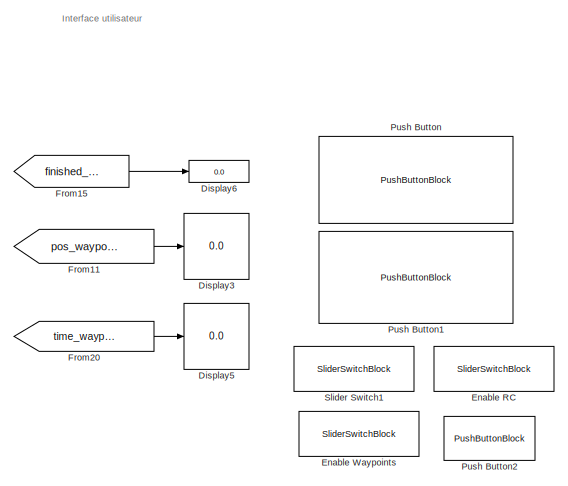
[diagram: root canvas - part 1/5, top center region]
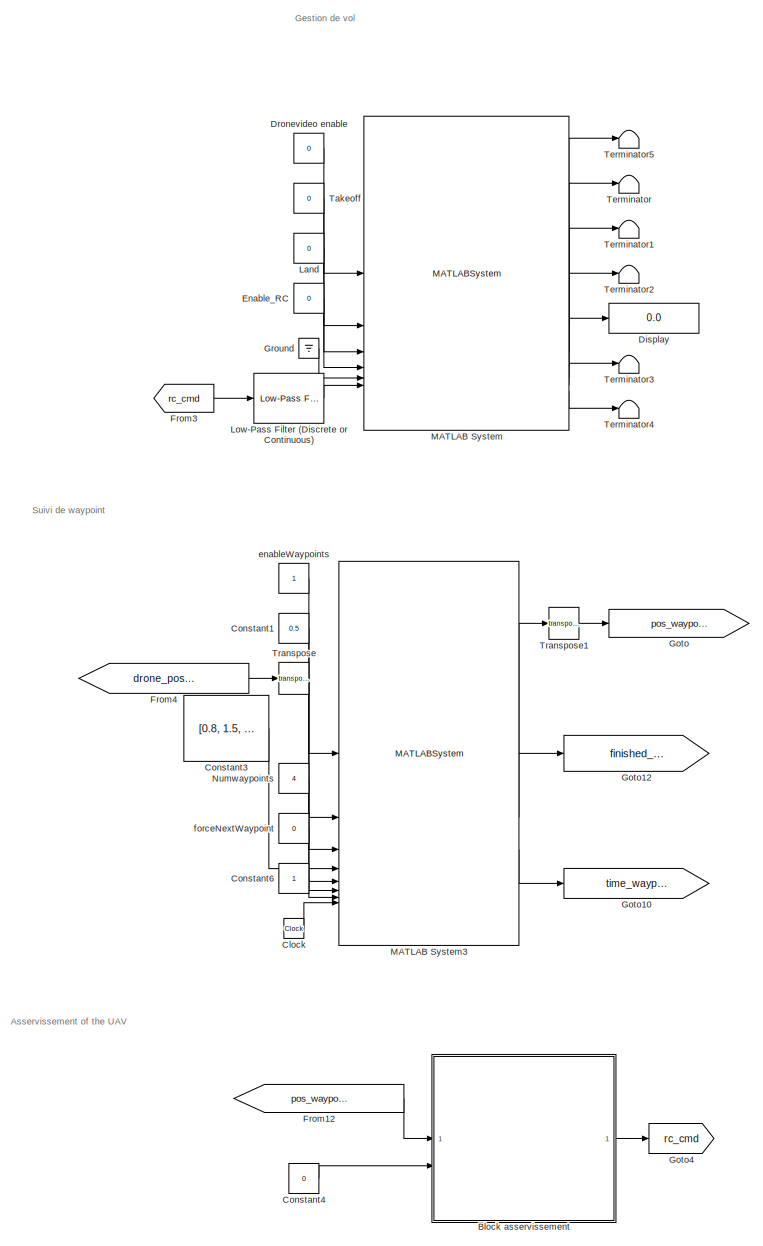
[diagram: root canvas - part 2/5, right side, full height]
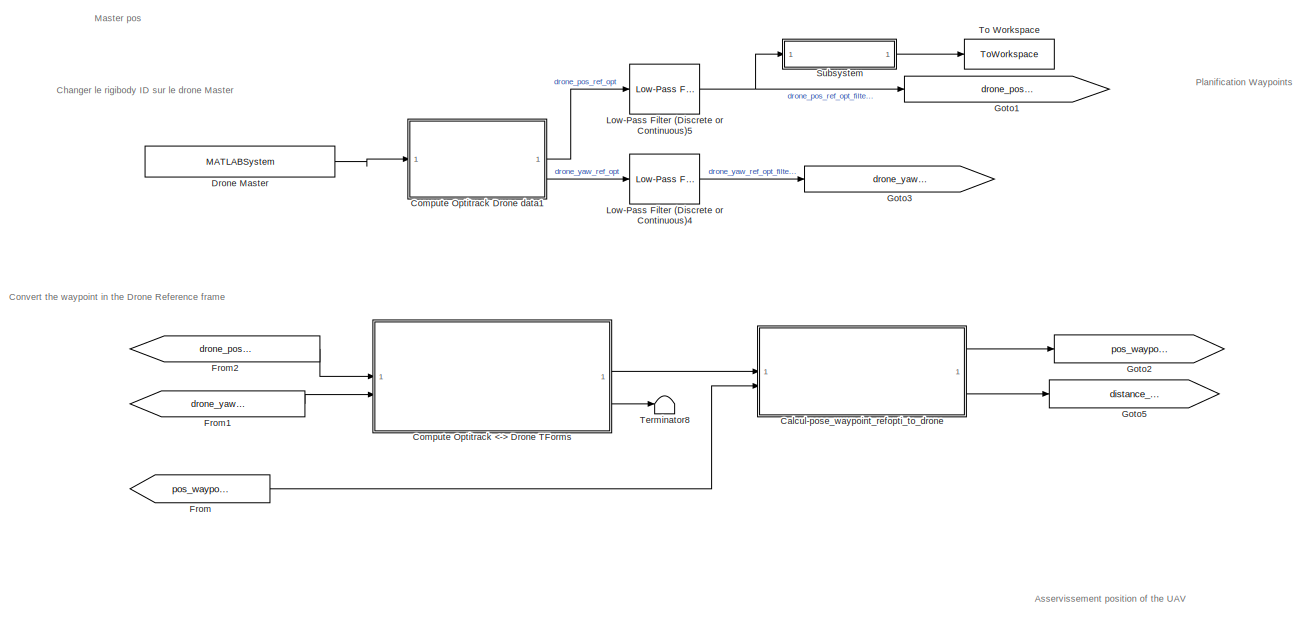
[diagram: root canvas - part 3/5, central region]
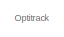
[diagram: root canvas - part 4/5, middle left region]
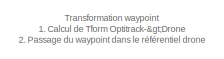
[diagram: root canvas - part 5/5, middle left region]
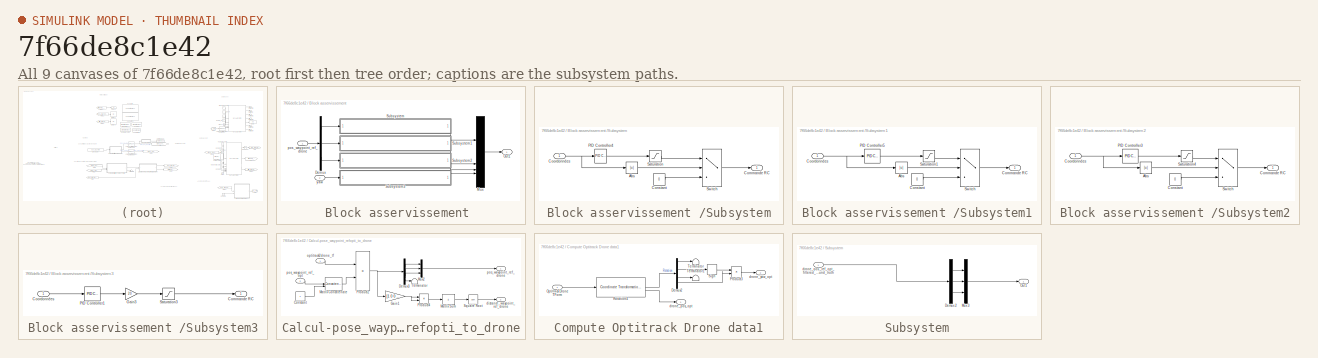
[diagram: thumbnail index - all 9 canvases of the model, root first then tree order]
MODEL slx_7f66de8c1e42
KIND model
CONFIG AbsTol = auto
CONFIG EnableMultiTasking = off
CONFIG FixedStep = 0.1
CONFIG MaxStep = auto
CONFIG MinStep = auto
CONFIG RelTol = 1e-3
CONFIG SampleTimeConstraint = Unconstrained
CONFIG SolverName = FixedStepAuto
CONFIG StartTime = 0.0
CONFIG StopTime = inf
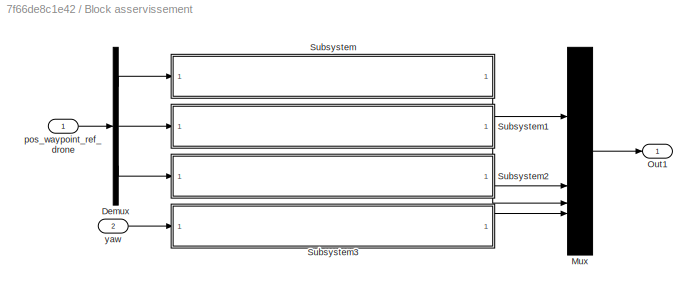
BLOCK [SubSystem] Block asservissement 
BLOCK [Demux] Block asservissement /Demux
  Outputs = 3
BLOCK [Mux] Block asservissement /Mux
  DisplayOption = bar
BLOCK [Outport] Block asservissement /Out1
BLOCK [SubSystem] Block asservissement /Subsystem
BLOCK [Abs] Block asservissement /Subsystem/Abs
  SaturateOnIntegerOverflow = off
BLOCK [Outport] Block asservissement /Subsystem/Commande RC
BLOCK [Constant] Block asservissement /Subsystem/Constant
  Value = 0
BLOCK [Inport] Block asservissement /Subsystem/Coordonnées
BLOCK [Reference] Block asservissement /Subsystem/PID Controller4  REF=slpidlib/PID Controller
  LibrarySourceBlock = simulink/Continuous/PID Controller
  SourceBlock = slpidlib/PID Controller
  SourceType = PID 1dof
BLOCK [Saturate] Block asservissement /Subsystem/Saturation
  LowerLimit = -20
  UpperLimit = 20
BLOCK [Switch] Block asservissement /Subsystem/Switch
  Criteria = u2 > Threshold
  InputSameDT = off
  SaturateOnIntegerOverflow = off
  Threshold = 0.01
BLOCK [SubSystem] Block asservissement /Subsystem1
BLOCK [Abs] Block asservissement /Subsystem1/Abs
  SaturateOnIntegerOverflow = off
BLOCK [Outport] Block asservissement /Subsystem1/Commande RC
BLOCK [Constant] Block asservissement /Subsystem1/Constant
  Value = 0
BLOCK [Inport] Block asservissement /Subsystem1/Coordonnées
BLOCK [Reference] Block asservissement /Subsystem1/PID Controller5  REF=slpidlib/PID Controller
  LibrarySourceBlock = simulink/Continuous/PID Controller
  SourceBlock = slpidlib/PID Controller
  SourceType = PID 1dof
BLOCK [Saturate] Block asservissement /Subsystem1/Saturation1
  LowerLimit = -20
  UpperLimit = 20
BLOCK [Switch] Block asservissement /Subsystem1/Switch
  Criteria = u2 > Threshold
  InputSameDT = off
  SaturateOnIntegerOverflow = off
  Threshold = 0.01
BLOCK [SubSystem] Block asservissement /Subsystem2
BLOCK [Abs] Block asservissement /Subsystem2/Abs
  SaturateOnIntegerOverflow = off
BLOCK [Outport] Block asservissement /Subsystem2/Commande RC
BLOCK [Constant] Block asservissement /Subsystem2/Constant
  Value = 0
BLOCK [Inport] Block asservissement /Subsystem2/Coordonnées
BLOCK [Reference] Block asservissement /Subsystem2/PID Controller3  REF=slpidlib/PID Controller
  LibrarySourceBlock = simulink/Continuous/PID Controller
  SourceBlock = slpidlib/PID Controller
  SourceType = PID 1dof
BLOCK [Saturate] Block asservissement /Subsystem2/Saturation4
  LowerLimit = -20
  UpperLimit = 20
BLOCK [Switch] Block asservissement /Subsystem2/Switch
  Criteria = u2 > Threshold
  InputSameDT = off
  SaturateOnIntegerOverflow = off
  Threshold = 0.01
BLOCK [SubSystem] Block asservissement /Subsystem3
BLOCK [Outport] Block asservissement /Subsystem3/Commande RC
BLOCK [Inport] Block asservissement /Subsystem3/Coordonnées
BLOCK [Gain] Block asservissement /Subsystem3/Gain3
  Gain = 20
BLOCK [Reference] Block asservissement /Subsystem3/PID Controller1  REF=slpidlib/PID Controller
  LibrarySourceBlock = simulink/Continuous/PID Controller
  SourceBlock = slpidlib/PID Controller
  SourceType = PID 1dof
BLOCK [Saturate] Block asservissement /Subsystem3/Saturation3
  LowerLimit = -50
  UpperLimit = 50
BLOCK [Inport] Block asservissement /pos_waypoint_ref_drone
BLOCK [Inport] Block asservissement /yaw
  Port = 2
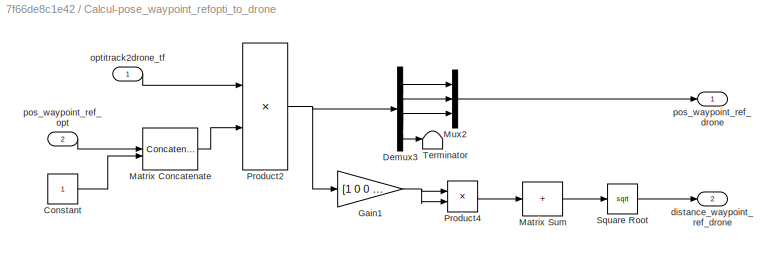
BLOCK [SubSystem] Calcul-pose_waypoint_refopti_to_drone
BLOCK [Constant] Calcul-pose_waypoint_refopti_to_drone/Constant
BLOCK [Demux] Calcul-pose_waypoint_refopti_to_drone/Demux3
BLOCK [Gain] Calcul-pose_waypoint_refopti_to_drone/Gain1
  Gain = [1 0 0 0; 0 1 0 0; 0 0 0 0; 0 0 0 0]
  Multiplication = Matrix(K*u)
BLOCK [Concatenate] Calcul-pose_waypoint_refopti_to_drone/Matrix Concatenate
  ConcatenateDimension = 2
BLOCK [Sum] Calcul-pose_waypoint_refopti_to_drone/Matrix Sum
  IconShape = rectangular
  Inputs = +
BLOCK [Mux] Calcul-pose_waypoint_refopti_to_drone/Mux2
  DisplayOption = bar
  Inputs = 3
BLOCK [Product] Calcul-pose_waypoint_refopti_to_drone/Product2
  Multiplication = Matrix(*)
BLOCK [Product] Calcul-pose_waypoint_refopti_to_drone/Product4
BLOCK [Sqrt] Calcul-pose_waypoint_refopti_to_drone/Square Root
BLOCK [Terminator] Calcul-pose_waypoint_refopti_to_drone/Terminator
BLOCK [Outport] Calcul-pose_waypoint_refopti_to_drone/distance_waypoint_ref_drone
  Port = 2
BLOCK [Inport] Calcul-pose_waypoint_refopti_to_drone/optitrack2drone_tf
BLOCK [Outport] Calcul-pose_waypoint_refopti_to_drone/pos_waypoint_ref_drone
BLOCK [Inport] Calcul-pose_waypoint_refopti_to_drone/pos_waypoint_ref_opt
  Port = 2
BLOCK [Clock] Clock
BLOCK [SubSystem] Compute Optitrack <-> Drone TForms
  ReferencedSubsystem = Compute_Optitrack_Drone_TForms
BLOCK [SubSystem] Compute Optitrack Drone data1
BLOCK [Demux] Compute Optitrack Drone data1/Demux2
BLOCK [Inport] Compute Optitrack Drone data1/Optitrack Drone TForm
BLOCK [Product] Compute Optitrack Drone data1/Product3
BLOCK [Reference] Compute Optitrack Drone data1/Rotation4  REF=robotcorelib/Coordinate Transformation Conversion
  LibrarySourceBlock = uavutilslib/Coordinate Transformation Conversion
  SourceBlock = robotcorelib/Coordinate Transformation Conversion
  SourceType = robotics.slcore.internal.block.CoordinateTransformationConversion
BLOCK [Signum] Compute Optitrack Drone data1/Sign
BLOCK [Terminator] Compute Optitrack Drone data1/Terminator
BLOCK [Terminator] Compute Optitrack Drone data1/Terminator1
BLOCK [Outport] Compute Optitrack Drone data1/drone_pos_opt
BLOCK [Outport] Compute Optitrack Drone data1/drone_yaw_opt
  Port = 2
BLOCK [Constant] Constant1
  Value = 0.5
BLOCK [Constant] Constant3
  Value = [0.8, 1.5, 0; 0.8 1 0.8; 0 1.5 0.8; 0 0.8 0]
BLOCK [Constant] Constant4
  Value = 0
BLOCK [Constant] Constant6
BLOCK [Display] Display
  Decimation = 1
BLOCK [Display] Display3
  Decimation = 1
BLOCK [Display] Display5
  Decimation = 1
BLOCK [Display] Display6
  Decimation = 1
BLOCK [MATLABSystem] Drone Master
  ClientIP = 10.147.125.15
  HostIP = 10.147.125.15
  MaskDisplay = disp('OptilinkSystem');\nport_label('output',1,'Drones data');\nport_label('output',2,'Connected');
  MaskType = OptilinkSystem
  RigidbodyID = 2
  SimulateUsing = Interpreted execution
  System = OptilinkSystem
BLOCK [Constant] Dronevideo enable
  Value = 0
BLOCK [SliderSwitchBlock] Enable RC
BLOCK [SliderSwitchBlock] Enable Waypoints
BLOCK [Constant] Enable_RC
  Value = 0
BLOCK [From] From
  GotoTag = pos_waypoint_ref_opt
BLOCK [From] From1
  GotoTag = drone_yaw_ref_opt_filtered
BLOCK [From] From11
  GotoTag = pos_waypoint_ref_opt
BLOCK [From] From12
  GotoTag = pos_waypoint_ref_drone
BLOCK [From] From15
  GotoTag = finished_waypoint
BLOCK [From] From2
  GotoTag = drone_pos_ref_opt_filtered
BLOCK [From] From20
  GotoTag = time_waypoint
BLOCK [From] From3
  GotoTag = rc_cmd
BLOCK [From] From4
  GotoTag = drone_pos_ref_opt_filtered
BLOCK [Goto] Goto
  GotoTag = pos_waypoint_ref_opt
BLOCK [Goto] Goto1
  GotoTag = drone_pos_ref_opt_filtered
BLOCK [Goto] Goto10
  GotoTag = time_waypoint
BLOCK [Goto] Goto12
  GotoTag = finished_waypoint
BLOCK [Goto] Goto2
  GotoTag = pos_waypoint_ref_drone
BLOCK [Goto] Goto3
  GotoTag = drone_yaw_ref_opt_filtered
BLOCK [Goto] Goto4
  GotoTag = rc_cmd
BLOCK [Goto] Goto5
  GotoTag = distance_to_waypoint
BLOCK [Ground] Ground
BLOCK [Constant] Land
  Value = 0
BLOCK [Reference] Low-Pass Filter (Discrete or Continuous)  REF=eeGeneralControl/Low-Pass Filter
(Discrete or Continuous)
  LibrarySourceBlock = ee_sl_lib/General Control/Low-Pass Filter\n(Discrete or Continuous)
  SourceBlock = eeGeneralControl/Low-Pass Filter\n(Discrete or Continuous)
  SourceType = Low-Pass Filter (Discrete or Continuous)
BLOCK [Reference] Low-Pass Filter (Discrete or Continuous)4  REF=eeGeneralControl/Low-Pass Filter
(Discrete or Continuous)
  LibrarySourceBlock = ee_sl_lib/General Control/Low-Pass Filter\n(Discrete or Continuous)
  SourceBlock = eeGeneralControl/Low-Pass Filter\n(Discrete or Continuous)
  SourceType = Low-Pass Filter (Discrete or Continuous)
BLOCK [Reference] Low-Pass Filter (Discrete or Continuous)5  REF=eeGeneralControl/Low-Pass Filter
(Discrete or Continuous)
  LibrarySourceBlock = ee_sl_lib/General Control/Low-Pass Filter\n(Discrete or Continuous)
  SourceBlock = eeGeneralControl/Low-Pass Filter\n(Discrete or Continuous)
  SourceType = Low-Pass Filter (Discrete or Continuous)
BLOCK [MATLABSystem] MATLAB System
  MaskDisplay = disp('Tello_drone_control');\nport_label('input',1,'enableVideo');\nport_label('input',2,'tkoff');\nport_label('input',3,'landing');\nport_label('input',4,'enableRC');\nport_label('input',5,'cmdVideoDirection');\nport_label('input',6,'rcspeeds');\nport_label('output',1,'imageFront');\nport_label('output',2,'imageDown');\nport_label('output',3,'Eulerangles');\nport_label('output',4,'speedXYZ');\nport_label('o...<+117ch>
  MaskType = Tello_drone_control
  SimulateUsing = Interpreted execution
  System = Tello_drone_control
  droneIP = 127.0.0.1
BLOCK [MATLABSystem] MATLAB System3
  MaskDisplay = disp('WaypointManager');\nport_label('input',1,'enable');\nport_label('input',2,'acceptableDistance');\nport_label('input',3,'currentPos');\nport_label('input',4,'waypoints');\nport_label('input',5,'numWaypoints');\nport_label('input',6,'forceNextWaypoint');\nport_label('input',7,'requiredTime');\nport_label('input',8,'time');\nport_label('output',1,'waypoint');\nport_label('output',2,'finished');\nport_labe...<+36ch>
  MaskType = WaypointManager
  SimulateUsing = Code generation
  System = WaypointManager
BLOCK [Constant] Numwaypoints
  Value = 4
BLOCK [PushButtonBlock] Push Button
  ButtonText = Take off
  OffValue = 0.000000
BLOCK [PushButtonBlock] Push Button1
  ButtonText = Land
  OffValue = 0.000000
BLOCK [PushButtonBlock] Push Button2
  ButtonText = Next waypoint
  OffValue = 0.000000
BLOCK [SliderSwitchBlock] Slider Switch1
BLOCK [SubSystem] Subsystem
BLOCK [Demux] Subsystem/Demux2
  Outputs = 3
BLOCK [Mux] Subsystem/Mux3
  DisplayOption = bar
  Inputs = 3
BLOCK [Outport] Subsystem/Out1
BLOCK [Inport] Subsystem/drone_pos_ref_opt_filtered_ground_truth
BLOCK [Constant] Takeoff
  Value = 0
BLOCK [Terminator] Terminator
BLOCK [Terminator] Terminator1
BLOCK [Terminator] Terminator2
BLOCK [Terminator] Terminator3
BLOCK [Terminator] Terminator4
BLOCK [Terminator] Terminator5
BLOCK [Terminator] Terminator8
BLOCK [ToWorkspace] To Workspace
  FixptAsFi = on
  MaxDataPoints = inf
  SampleTime = -1
  VariableName = groundtruthopti
BLOCK [Math] Transpose
  Operator = transpose
BLOCK [Math] Transpose1
  Operator = transpose
BLOCK [Constant] enableWaypoints
BLOCK [Constant] forceNextWaypoint
  Value = 0
ANNOTATION (root): Transformation waypoint 1. Calcul de Tform Optitrack->Drone 2. Passage du waypoint dans le référentiel drone
ANNOTATION (root): Asservissement position of the UAV
ANNOTATION (root): Gestion de vol
ANNOTATION (root): Interface utilisateur
ANNOTATION (root): Optitrack
ANNOTATION (root): Planification Waypoints
ANNOTATION (root): Asservissement of the UAV
ANNOTATION (root): Changer le rigibody ID sur le drone Master
ANNOTATION (root): Convert the waypoint in the Drone Reference frame
ANNOTATION (root): Master pos
ANNOTATION (root): Suivi de waypoint
LINE Block asservissement /Demux:1 -> Block asservissement /Subsystem:1
LINE Block asservissement /Demux:2 -> Block asservissement /Subsystem1:1
LINE Block asservissement /Demux:3 -> Block asservissement /Subsystem2:1
LINE Block asservissement /Mux:1 -> Block asservissement /Out1:1
LINE Block asservissement /Subsystem/Abs:1 -> Block asservissement /Subsystem/Switch:2
LINE Block asservissement /Subsystem/Constant:1 -> Block asservissement /Subsystem/Switch:3
NET Block asservissement /Subsystem/Coordonnées:1 -> Block asservissement /Subsystem/Abs:1, Block asservissement /Subsystem/PID Controller4:1
LINE Block asservissement /Subsystem/PID Controller4:1 -> Block asservissement /Subsystem/Saturation:1
LINE Block asservissement /Subsystem/Saturation:1 -> Block asservissement /Subsystem/Switch:1
LINE Block asservissement /Subsystem/Switch:1 -> Block asservissement /Subsystem/Commande RC:1
LINE Block asservissement /Subsystem1/Abs:1 -> Block asservissement /Subsystem1/Switch:2
LINE Block asservissement /Subsystem1/Constant:1 -> Block asservissement /Subsystem1/Switch:3
NET Block asservissement /Subsystem1/Coordonnées:1 -> Block asservissement /Subsystem1/Abs:1, Block asservissement /Subsystem1/PID Controller5:1
LINE Block asservissement /Subsystem1/PID Controller5:1 -> Block asservissement /Subsystem1/Saturation1:1
LINE Block asservissement /Subsystem1/Saturation1:1 -> Block asservissement /Subsystem1/Switch:1
LINE Block asservissement /Subsystem1/Switch:1 -> Block asservissement /Subsystem1/Commande RC:1
LINE Block asservissement /Subsystem1:1 -> Block asservissement /Mux:2
LINE Block asservissement /Subsystem2/Abs:1 -> Block asservissement /Subsystem2/Switch:2
LINE Block asservissement /Subsystem2/Constant:1 -> Block asservissement /Subsystem2/Switch:3
NET Block asservissement /Subsystem2/Coordonnées:1 -> Block asservissement /Subsystem2/Abs:1, Block asservissement /Subsystem2/PID Controller3:1
LINE Block asservissement /Subsystem2/PID Controller3:1 -> Block asservissement /Subsystem2/Saturation4:1
LINE Block asservissement /Subsystem2/Saturation4:1 -> Block asservissement /Subsystem2/Switch:1
LINE Block asservissement /Subsystem2/Switch:1 -> Block asservissement /Subsystem2/Commande RC:1
LINE Block asservissement /Subsystem2:1 -> Block asservissement /Mux:3
LINE Block asservissement /Subsystem3/Coordonnées:1 -> Block asservissement /Subsystem3/PID Controller1:1
LINE Block asservissement /Subsystem3/Gain3:1 -> Block asservissement /Subsystem3/Saturation3:1
LINE Block asservissement /Subsystem3/PID Controller1:1 -> Block asservissement /Subsystem3/Gain3:1
LINE Block asservissement /Subsystem3/Saturation3:1 -> Block asservissement /Subsystem3/Commande RC:1
LINE Block asservissement /Subsystem3:1 -> Block asservissement /Mux:4
LINE Block asservissement /Subsystem:1 -> Block asservissement /Mux:1
LINE Block asservissement /pos_waypoint_ref_drone:1 -> Block asservissement /Demux:1
LINE Block asservissement /yaw:1 -> Block asservissement /Subsystem3:1
LINE Block asservissement :1 -> Goto4:1
LINE Calcul-pose_waypoint_refopti_to_drone/Constant:1 -> Calcul-pose_waypoint_refopti_to_drone/Matrix Concatenate:2
LINE Calcul-pose_waypoint_refopti_to_drone/Demux3:1 -> Calcul-pose_waypoint_refopti_to_drone/Mux2:1
LINE Calcul-pose_waypoint_refopti_to_drone/Demux3:2 -> Calcul-pose_waypoint_refopti_to_drone/Mux2:2
LINE Calcul-pose_waypoint_refopti_to_drone/Demux3:3 -> Calcul-pose_waypoint_refopti_to_drone/Mux2:3
LINE Calcul-pose_waypoint_refopti_to_drone/Demux3:4 -> Calcul-pose_waypoint_refopti_to_drone/Terminator:1
NET Calcul-pose_waypoint_refopti_to_drone/Gain1:1 -> Calcul-pose_waypoint_refopti_to_drone/Product4:1, Calcul-pose_waypoint_refopti_to_drone/Product4:2
LINE Calcul-pose_waypoint_refopti_to_drone/Matrix Concatenate:1 -> Calcul-pose_waypoint_refopti_to_drone/Product2:2
LINE Calcul-pose_waypoint_refopti_to_drone/Matrix Sum:1 -> Calcul-pose_waypoint_refopti_to_drone/Square Root:1
LINE Calcul-pose_waypoint_refopti_to_drone/Mux2:1 -> Calcul-pose_waypoint_refopti_to_drone/pos_waypoint_ref_drone:1
NET Calcul-pose_waypoint_refopti_to_drone/Product2:1 -> Calcul-pose_waypoint_refopti_to_drone/Demux3:1, Calcul-pose_waypoint_refopti_to_drone/Gain1:1
LINE Calcul-pose_waypoint_refopti_to_drone/Product4:1 -> Calcul-pose_waypoint_refopti_to_drone/Matrix Sum:1
LINE Calcul-pose_waypoint_refopti_to_drone/Square Root:1 -> Calcul-pose_waypoint_refopti_to_drone/distance_waypoint_ref_drone:1
LINE Calcul-pose_waypoint_refopti_to_drone/optitrack2drone_tf:1 -> Calcul-pose_waypoint_refopti_to_drone/Product2:1
LINE Calcul-pose_waypoint_refopti_to_drone/pos_waypoint_ref_opt:1 -> Calcul-pose_waypoint_refopti_to_drone/Matrix Concatenate:1
LINE Calcul-pose_waypoint_refopti_to_drone:1 -> Goto2:1
LINE Calcul-pose_waypoint_refopti_to_drone:2 -> Goto5:1
LINE Clock:1 -> MATLAB System3:8
LINE Compute Optitrack <-> Drone TForms:1 -> Calcul-pose_waypoint_refopti_to_drone:1
LINE Compute Optitrack <-> Drone TForms:2 -> Terminator8:1
LINE Compute Optitrack Drone data1/Demux2:1 -> Compute Optitrack Drone data1/Terminator:1
LINE Compute Optitrack Drone data1/Demux2:2 -> Compute Optitrack Drone data1/Sign:1
LINE Compute Optitrack Drone data1/Demux2:3 -> Compute Optitrack Drone data1/Terminator1:1
LINE Compute Optitrack Drone data1/Demux2:4 -> Compute Optitrack Drone data1/Product3:2
LINE Compute Optitrack Drone data1/Optitrack Drone TForm:1 -> Compute Optitrack Drone data1/Rotation4:1
LINE Compute Optitrack Drone data1/Product3:1 -> Compute Optitrack Drone data1/drone_yaw_opt:1
LINE Compute Optitrack Drone data1/Rotation4:1 -> Compute Optitrack Drone data1/Demux2:1
LINE Compute Optitrack Drone data1/Rotation4:2 -> Compute Optitrack Drone data1/drone_pos_opt:1
LINE Compute Optitrack Drone data1/Sign:1 -> Compute Optitrack Drone data1/Product3:1
LINE Compute Optitrack Drone data1:1 -> Low-Pass Filter (Discrete or Continuous)5:1
LINE Compute Optitrack Drone data1:2 -> Low-Pass Filter (Discrete or Continuous)4:1
LINE Constant1:1 -> MATLAB System3:2
LINE Constant3:1 -> MATLAB System3:4
LINE Constant4:1 -> Block asservissement :2
LINE Constant6:1 -> MATLAB System3:7
LINE Drone Master:1 -> Compute Optitrack Drone data1:1
LINE Dronevideo enable:1 -> MATLAB System:1
LINE Enable_RC:1 -> MATLAB System:4
LINE From11:1 -> Display3:1
LINE From12:1 -> Block asservissement :1
LINE From15:1 -> Display6:1
LINE From1:1 -> Compute Optitrack <-> Drone TForms:2
LINE From20:1 -> Display5:1
LINE From2:1 -> Compute Optitrack <-> Drone TForms:1
LINE From3:1 -> Low-Pass Filter (Discrete or Continuous):1
LINE From4:1 -> Transpose:1
LINE From:1 -> Calcul-pose_waypoint_refopti_to_drone:2
LINE Ground:1 -> MATLAB System:5
LINE Land:1 -> MATLAB System:3
LINE Low-Pass Filter (Discrete or Continuous)4:1 -> Goto3:1
NET Low-Pass Filter (Discrete or Continuous)5:1 -> Goto1:1, Subsystem:1
LINE Low-Pass Filter (Discrete or Continuous):1 -> MATLAB System:6
LINE MATLAB System3:1 -> Transpose1:1
LINE MATLAB System3:2 -> Goto12:1
LINE MATLAB System3:3 -> Goto10:1
LINE MATLAB System:1 -> Terminator5:1
LINE MATLAB System:2 -> Terminator:1
LINE MATLAB System:3 -> Terminator1:1
LINE MATLAB System:4 -> Terminator2:1
LINE MATLAB System:5 -> Display:1
LINE MATLAB System:6 -> Terminator3:1
LINE MATLAB System:7 -> Terminator4:1
LINE Numwaypoints:1 -> MATLAB System3:5
LINE Subsystem/Demux2:1 -> Subsystem/Mux3:1
LINE Subsystem/Demux2:2 -> Subsystem/Mux3:2
LINE Subsystem/Demux2:3 -> Subsystem/Mux3:3
LINE Subsystem/Mux3:1 -> Subsystem/Out1:1
LINE Subsystem/drone_pos_ref_opt_filtered_ground_truth:1 -> Subsystem/Demux2:1
LINE Subsystem:1 -> To Workspace:1
LINE Takeoff:1 -> MATLAB System:2
LINE Transpose1:1 -> Goto:1
LINE Transpose:1 -> MATLAB System3:3
LINE enableWaypoints:1 -> MATLAB System3:1
LINE forceNextWaypoint:1 -> MATLAB System3:6
note: NET lines group one-source signal fan-out (src -> all destinations, sorted); 1:1 wires keep LINE
